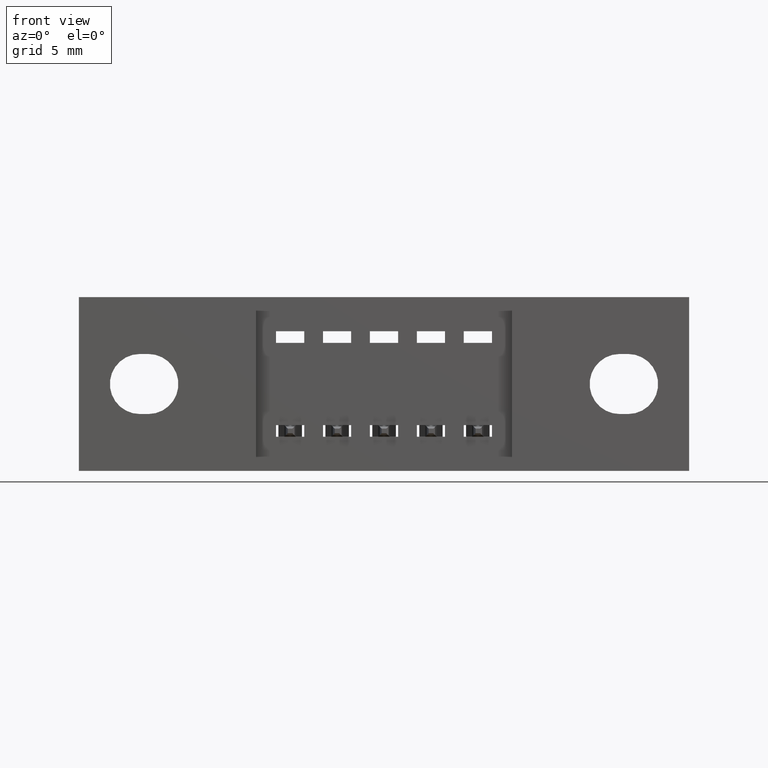
[diagram: clean part render]
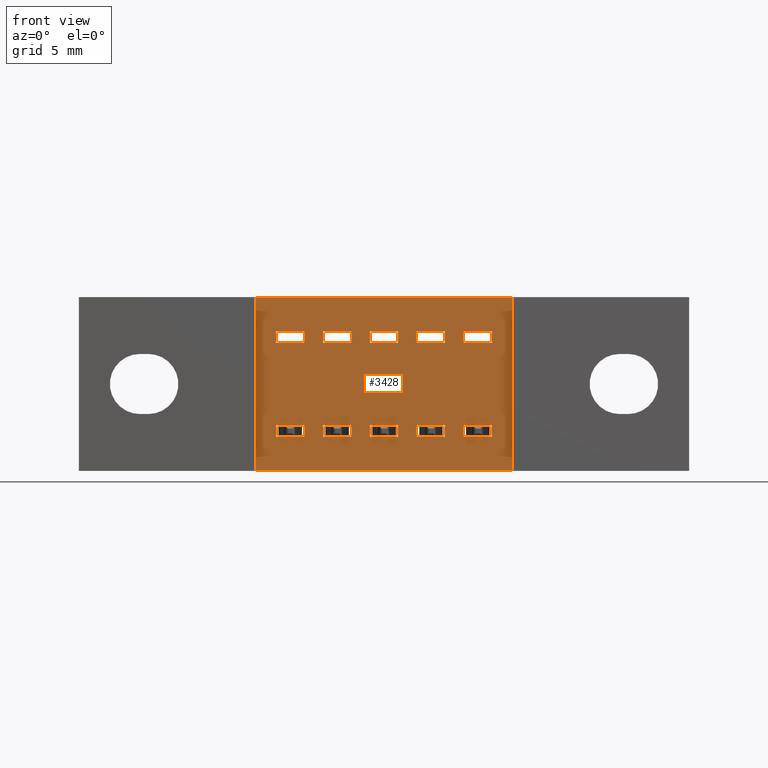
[diagram: same view with one face highlighted and labeled with its STEP entity id]
A machine part, front view. The second image highlights one B-rep face of the part: STEP entity #3428.
In plain terms, the highlighted planar face has unit normal (0, 1, 0).
Its self-contained STEP definition (entity closure, byte-faithful):
#25 = VECTOR ( 'NONE', #844, 39.37007874015748100 ) ;
#57 = VERTEX_POINT ( 'NONE', #4069 ) ;
#60 = DIRECTION ( 'NONE',  ( 0.0000000000000000000, 3.414809992080328000E-016, -1.000000000000000000 ) ) ;
#75 = EDGE_LOOP ( 'NONE', ( #1052, #6623, #1704, #816 ) ) ;
#116 = VECTOR ( 'NONE', #2858, 39.37007874015748100 ) ;
#124 = DIRECTION ( 'NONE',  ( 0.0000000000000000000, 3.414809992080328000E-016, -1.000000000000000000 ) ) ;
#134 = VECTOR ( 'NONE', #3311, 39.37007874015748100 ) ;
#174 = VERTEX_POINT ( 'NONE', #4760 ) ;
#248 = CARTESIAN_POINT ( 'NONE',  ( 0.6799999999999999400, 0.04000000000000000100, -0.2975000000000001000 ) ) ;
#309 = LINE ( 'NONE', #2794, #116 ) ;
#329 = LINE ( 'NONE', #4501, #2101 ) ;
#344 = CARTESIAN_POINT ( 'NONE',  ( 0.5200000000000000200, 0.04000000000000000800, -0.07249999999999999500 ) ) ;
#371 = EDGE_CURVE ( 'NONE', #3257, #3170, #7531, .T. ) ;
#403 = VERTEX_POINT ( 'NONE', #248 ) ;
#444 = VERTEX_POINT ( 'NONE', #6239 ) ;
#456 = ORIENTED_EDGE ( 'NONE', *, *, #6160, .T. ) ;
#493 = CARTESIAN_POINT ( 'NONE',  ( 0.7199999999999998600, 0.04000000000000000800, -0.07250000000000002300 ) ) ;
#508 = VECTOR ( 'NONE', #5824, 39.37007874015748100 ) ;
#510 = CARTESIAN_POINT ( 'NONE',  ( 0.4799999999999999800, 0.04000000000000000100, -0.2725000000000000200 ) ) ;
#523 = VECTOR ( 'NONE', #7432, 39.37007874015748100 ) ;
#544 = DIRECTION ( 'NONE',  ( 1.000000000000000000, -0.0000000000000000000, -0.0000000000000000000 ) ) ;
#549 = VERTEX_POINT ( 'NONE', #6992 ) ;
#588 = EDGE_LOOP ( 'NONE', ( #861, #5033, #2090, #2577 ) ) ;
#648 = CARTESIAN_POINT ( 'NONE',  ( 0.8199999999999998400, 0.04000000000000000100, -0.2725000000000000800 ) ) ;
#650 = ORIENTED_EDGE ( 'NONE', *, *, #4269, .T. ) ;
#668 = DIRECTION ( 'NONE',  ( 1.000000000000000000, -0.0000000000000000000, -0.0000000000000000000 ) ) ;
#676 = CARTESIAN_POINT ( 'NONE',  ( 0.9229999999999999300, 0.04000000000000000100, -0.3700000000000000000 ) ) ;
#693 = CARTESIAN_POINT ( 'NONE',  ( 0.4799999999999999800, 0.04000000000000000100, -0.2725000000000000200 ) ) ;
#697 = VECTOR ( 'NONE', #3693, 39.37007874015748100 ) ;
#707 = VERTEX_POINT ( 'NONE', #2707 ) ;
#714 = EDGE_CURVE ( 'NONE', #1273, #57, #1741, .T. ) ;
#745 = EDGE_CURVE ( 'NONE', #5163, #4393, #1357, .T. ) ;
#769 = CARTESIAN_POINT ( 'NONE',  ( 0.7199999999999998600, 0.04000000000000000100, -0.09750000000000003100 ) ) ;
#791 = LINE ( 'NONE', #4119, #6969 ) ;
#792 = CARTESIAN_POINT ( 'NONE',  ( 0.4200000000000000400, 0.04000000000000000100, -0.2725000000000000200 ) ) ;
#816 = ORIENTED_EDGE ( 'NONE', *, *, #1228, .F. ) ;
#844 = DIRECTION ( 'NONE',  ( 1.000000000000000000, -0.0000000000000000000, -0.0000000000000000000 ) ) ;
#861 = ORIENTED_EDGE ( 'NONE', *, *, #2764, .T. ) ;
#893 = CARTESIAN_POINT ( 'NONE',  ( 0.8199999999999998400, 0.04000000000000000800, -0.07250000000000003700 ) ) ;
#898 = VERTEX_POINT ( 'NONE', #2296 ) ;
#936 = CARTESIAN_POINT ( 'NONE',  ( 0.4200000000000000400, 0.04000000000000000100, -0.2725000000000000200 ) ) ;
#959 = EDGE_CURVE ( 'NONE', #4010, #6104, #4534, .T. ) ;
#977 = DIRECTION ( 'NONE',  ( 1.000000000000000000, -0.0000000000000000000, -0.0000000000000000000 ) ) ;
#983 = VECTOR ( 'NONE', #4217, 39.37007874015748100 ) ;
#1052 = ORIENTED_EDGE ( 'NONE', *, *, #6524, .F. ) ;
#1106 = VERTEX_POINT ( 'NONE', #5840 ) ;
#1125 = CARTESIAN_POINT ( 'NONE',  ( 0.6200000000000000000, 0.04000000000000000100, -0.2725000000000000800 ) ) ;
#1173 = VECTOR ( 'NONE', #7095, 39.37007874015748100 ) ;
#1195 = FACE_BOUND ( 'NONE', #75, .T. ) ;
#1196 = VECTOR ( 'NONE', #4358, 39.37007874015748100 ) ;
#1205 = LINE ( 'NONE', #1125, #4263 ) ;
#1228 = EDGE_CURVE ( 'NONE', #174, #4693, #4427, .T. ) ;
#1264 = CARTESIAN_POINT ( 'NONE',  ( 0.7199999999999998600, 0.04000000000000000100, -0.2725000000000000800 ) ) ;
#1269 = LINE ( 'NONE', #1264, #4338 ) ;
#1273 = VERTEX_POINT ( 'NONE', #7652 ) ;
#1301 = ORIENTED_EDGE ( 'NONE', *, *, #4323, .T. ) ;
#1330 = VECTOR ( 'NONE', #4502, 39.37007874015748100 ) ;
#1340 = LINE ( 'NONE', #4134, #4425 ) ;
#1357 = LINE ( 'NONE', #5047, #7705 ) ;
#1400 = ORIENTED_EDGE ( 'NONE', *, *, #4314, .F. ) ;
#1425 = LINE ( 'NONE', #6259, #3205 ) ;
#1448 = DIRECTION ( 'NONE',  ( 0.0000000000000000000, 3.414809992080328000E-016, -1.000000000000000000 ) ) ;
#1513 = EDGE_CURVE ( 'NONE', #2243, #1605, #2257, .T. ) ;
#1537 = DIRECTION ( 'NONE',  ( 1.000000000000000000, -0.0000000000000000000, -0.0000000000000000000 ) ) ;
#1542 = CARTESIAN_POINT ( 'NONE',  ( 0.7799999999999999200, 0.04000000000000000100, -0.2725000000000000800 ) ) ;
#1571 = CARTESIAN_POINT ( 'NONE',  ( 0.5800000000000000700, 0.04000000000000000100, -0.2975000000000000400 ) ) ;
#1588 = CARTESIAN_POINT ( 'NONE',  ( 0.3770000000000000600, 0.04000000000000000100, -0.3700000000000000000 ) ) ;
#1605 = VERTEX_POINT ( 'NONE', #4353 ) ;
#1620 = CARTESIAN_POINT ( 'NONE',  ( 0.5200000000000000200, 0.04000000000000000800, -0.2975000000000000400 ) ) ;
#1704 = ORIENTED_EDGE ( 'NONE', *, *, #2536, .T. ) ;
#1736 = EDGE_LOOP ( 'NONE', ( #6810, #7825, #6886, #6044 ) ) ;
#1741 = LINE ( 'NONE', #2721, #3141 ) ;
#1747 = LINE ( 'NONE', #7662, #134 ) ;
#1794 = ORIENTED_EDGE ( 'NONE', *, *, #745, .T. ) ;
#1822 = VECTOR ( 'NONE', #5116, 39.37007874015748100 ) ;
#1849 = EDGE_CURVE ( 'NONE', #3970, #7869, #3023, .T. ) ;
#1865 = CARTESIAN_POINT ( 'NONE',  ( 0.6200000000000000000, 0.04000000000000000100, -0.09750000000000001700 ) ) ;
#1892 = LINE ( 'NONE', #1620, #3317 ) ;
#1934 = ORIENTED_EDGE ( 'NONE', *, *, #2716, .F. ) ;
#1961 = EDGE_CURVE ( 'NONE', #7923, #3170, #4137, .T. ) ;
#1967 = CARTESIAN_POINT ( 'NONE',  ( 0.5800000000000000700, 0.04000000000000000100, -0.09750000000000000300 ) ) ;
#2050 = EDGE_CURVE ( 'NONE', #2689, #3620, #6281, .T. ) ;
#2052 = EDGE_LOOP ( 'NONE', ( #6495, #6341, #6436, #6233 ) ) ;
#2059 = EDGE_CURVE ( 'NONE', #549, #5204, #4607, .T. ) ;
#2061 = EDGE_LOOP ( 'NONE', ( #4257, #5574, #5628, #7523 ) ) ;
#2090 = ORIENTED_EDGE ( 'NONE', *, *, #6053, .T. ) ;
#2091 = LINE ( 'NONE', #1865, #523 ) ;
#2101 = VECTOR ( 'NONE', #5128, 39.37007874015748100 ) ;
#2157 = DIRECTION ( 'NONE',  ( -0.0000000000000000000, -3.414809992080328000E-016, -1.000000000000000000 ) ) ;
#2164 = EDGE_CURVE ( 'NONE', #3970, #4961, #5900, .T. ) ;
#2226 = VERTEX_POINT ( 'NONE', #7021 ) ;
#2243 = VERTEX_POINT ( 'NONE', #693 ) ;
#2257 = LINE ( 'NONE', #510, #4144 ) ;
#2260 = VERTEX_POINT ( 'NONE', #4318 ) ;
#2270 = LINE ( 'NONE', #4933, #697 ) ;
#2296 = CARTESIAN_POINT ( 'NONE',  ( 0.8799999999999998900, 0.04000000000000000100, -0.2975000000000001000 ) ) ;
#2307 = EDGE_CURVE ( 'NONE', #1273, #6412, #2814, .T. ) ;
#2388 = CARTESIAN_POINT ( 'NONE',  ( 0.5800000000000000700, 0.04000000000000000800, -0.07249999999999999500 ) ) ;
#2438 = DIRECTION ( 'NONE',  ( 1.000000000000000000, -0.0000000000000000000, -0.0000000000000000000 ) ) ;
#2501 = DIRECTION ( 'NONE',  ( 1.000000000000000000, 0.0000000000000000000, 0.0000000000000000000 ) ) ;
#2530 = VECTOR ( 'NONE', #5576, 39.37007874015748100 ) ;
#2536 = EDGE_CURVE ( 'NONE', #6057, #4693, #2969, .T. ) ;
#2538 = VECTOR ( 'NONE', #3738, 39.37007874015748100 ) ;
#2547 = FACE_BOUND ( 'NONE', #2575, .T. ) ;
#2552 = EDGE_CURVE ( 'NONE', #3194, #1106, #1205, .T. ) ;
#2575 = EDGE_LOOP ( 'NONE', ( #4765, #456, #1794, #3910 ) ) ;
#2577 = ORIENTED_EDGE ( 'NONE', *, *, #2640, .T. ) ;
#2582 = CARTESIAN_POINT ( 'NONE',  ( 0.6200000000000000000, 0.04000000000000000800, -0.07250000000000000900 ) ) ;
#2584 = ORIENTED_EDGE ( 'NONE', *, *, #3835, .F. ) ;
#2640 = EDGE_CURVE ( 'NONE', #2226, #4585, #5366, .T. ) ;
#2681 = VERTEX_POINT ( 'NONE', #893 ) ;
#2689 = VERTEX_POINT ( 'NONE', #5690 ) ;
#2707 = CARTESIAN_POINT ( 'NONE',  ( 0.4200000000000000400, 0.04000000000000000800, -0.07249999999999998100 ) ) ;
#2716 = EDGE_CURVE ( 'NONE', #4200, #403, #3062, .T. ) ;
#2721 = CARTESIAN_POINT ( 'NONE',  ( 0.5200000000000000200, 0.04000000000000000100, -0.2725000000000000200 ) ) ;
#2736 = VECTOR ( 'NONE', #3279, 39.37007874015748100 ) ;
#2748 = FACE_BOUND ( 'NONE', #5475, .T. ) ;
#2764 = EDGE_CURVE ( 'NONE', #4585, #2689, #6032, .T. ) ;
#2794 = CARTESIAN_POINT ( 'NONE',  ( 0.6799999999999999400, 0.04000000000000000100, -0.2725000000000000800 ) ) ;
#2810 = CARTESIAN_POINT ( 'NONE',  ( 0.7199999999999998600, 0.04000000000000000100, -0.2725000000000000800 ) ) ;
#2811 = EDGE_LOOP ( 'NONE', ( #4088, #7011, #6555, #5868 ) ) ;
#2814 = LINE ( 'NONE', #3298, #4706 ) ;
#2858 = DIRECTION ( 'NONE',  ( 0.0000000000000000000, 3.414809992080328000E-016, -1.000000000000000000 ) ) ;
#2891 = CARTESIAN_POINT ( 'NONE',  ( 0.7799999999999999200, 0.04000000000000000100, -0.09750000000000003100 ) ) ;
#2951 = FACE_BOUND ( 'NONE', #2811, .T. ) ;
#2969 = LINE ( 'NONE', #5434, #4459 ) ;
#2987 = EDGE_CURVE ( 'NONE', #4718, #6214, #7721, .T. ) ;
#2991 = ORIENTED_EDGE ( 'NONE', *, *, #6354, .F. ) ;
#3011 = CARTESIAN_POINT ( 'NONE',  ( 0.6200000000000000000, 0.04000000000000000800, -0.07250000000000000900 ) ) ;
#3023 = LINE ( 'NONE', #3237, #6384 ) ;
#3026 = LINE ( 'NONE', #3989, #4521 ) ;
#3045 = VECTOR ( 'NONE', #124, 39.37007874015748100 ) ;
#3060 = VERTEX_POINT ( 'NONE', #1542 ) ;
#3062 = LINE ( 'NONE', #3702, #6629 ) ;
#3084 = DIRECTION ( 'NONE',  ( 1.000000000000000000, -0.0000000000000000000, -0.0000000000000000000 ) ) ;
#3141 = VECTOR ( 'NONE', #3084, 39.37007874015748100 ) ;
#3151 = VECTOR ( 'NONE', #6639, 39.37007874015748100 ) ;
#3170 = VERTEX_POINT ( 'NONE', #2891 ) ;
#3194 = VERTEX_POINT ( 'NONE', #6866 ) ;
#3205 = VECTOR ( 'NONE', #4388, 39.37007874015748100 ) ;
#3237 = CARTESIAN_POINT ( 'NONE',  ( 0.8199999999999998400, 0.04000000000000000100, -0.2725000000000000800 ) ) ;
#3244 = CARTESIAN_POINT ( 'NONE',  ( 0.4799999999999999800, 0.04000000000000000100, -0.09749999999999998900 ) ) ;
#3245 = VERTEX_POINT ( 'NONE', #6687 ) ;
#3257 = VERTEX_POINT ( 'NONE', #7549 ) ;
#3279 = DIRECTION ( 'NONE',  ( -0.0000000000000000000, -3.414809992080328000E-016, -1.000000000000000000 ) ) ;
#3289 = DIRECTION ( 'NONE',  ( -0.0000000000000000000, -3.414809992080328000E-016, -1.000000000000000000 ) ) ;
#3290 = DIRECTION ( 'NONE',  ( 1.000000000000000000, -0.0000000000000000000, -0.0000000000000000000 ) ) ;
#3298 = CARTESIAN_POINT ( 'NONE',  ( 0.5200000000000000200, 0.04000000000000000100, -0.2725000000000000200 ) ) ;
#3311 = DIRECTION ( 'NONE',  ( 0.0000000000000000000, 3.414809992080328000E-016, -1.000000000000000000 ) ) ;
#3317 = VECTOR ( 'NONE', #5349, 39.37007874015748100 ) ;
#3345 = EDGE_CURVE ( 'NONE', #57, #5381, #329, .T. ) ;
#3370 = CARTESIAN_POINT ( 'NONE',  ( 0.8199999999999998400, 0.04000000000000000100, -0.2725000000000000800 ) ) ;
#3423 = VECTOR ( 'NONE', #668, 39.37007874015748100 ) ;
#3428 = ADVANCED_FACE ( 'NONE', ( #6120, #2951, #6517, #7710, #4441, #2748, #1195, #7530, #5931, #4248, #2547 ), #7015, .F. ) ;
#3429 = VECTOR ( 'NONE', #6432, 39.37007874015748100 ) ;
#3434 = LINE ( 'NONE', #769, #1822 ) ;
#3502 = ORIENTED_EDGE ( 'NONE', *, *, #2987, .T. ) ;
#3535 = VECTOR ( 'NONE', #7805, 39.37007874015748100 ) ;
#3620 = VERTEX_POINT ( 'NONE', #4476 ) ;
#3622 = EDGE_CURVE ( 'NONE', #6665, #3245, #1269, .T. ) ;
#3630 = LINE ( 'NONE', #5804, #3429 ) ;
#3681 = CARTESIAN_POINT ( 'NONE',  ( 0.8799999999999998900, 0.04000000000000000100, -0.2725000000000000800 ) ) ;
#3691 = CARTESIAN_POINT ( 'NONE',  ( 0.8799999999999998900, 0.04000000000000000100, -0.09750000000000003100 ) ) ;
#3693 = DIRECTION ( 'NONE',  ( 1.000000000000000000, -0.0000000000000000000, -0.0000000000000000000 ) ) ;
#3702 = CARTESIAN_POINT ( 'NONE',  ( 0.6200000000000000000, 0.04000000000000000800, -0.2975000000000001000 ) ) ;
#3711 = DIRECTION ( 'NONE',  ( 1.000000000000000000, -0.0000000000000000000, -0.0000000000000000000 ) ) ;
#3726 = EDGE_CURVE ( 'NONE', #6325, #5204, #3749, .T. ) ;
#3738 = DIRECTION ( 'NONE',  ( 1.000000000000000000, -0.0000000000000000000, -0.0000000000000000000 ) ) ;
#3749 = LINE ( 'NONE', #7505, #6871 ) ;
#3835 = EDGE_CURVE ( 'NONE', #4718, #2260, #6506, .T. ) ;
#3866 = VECTOR ( 'NONE', #2501, 39.37007874015748100 ) ;
#3910 = ORIENTED_EDGE ( 'NONE', *, *, #7492, .F. ) ;
#3940 = VECTOR ( 'NONE', #3290, 39.37007874015748100 ) ;
#3970 = VERTEX_POINT ( 'NONE', #3370 ) ;
#3973 = CARTESIAN_POINT ( 'NONE',  ( 0.4200000000000000400, 0.04000000000000000800, -0.07249999999999998100 ) ) ;
#3989 = CARTESIAN_POINT ( 'NONE',  ( 0.7199999999999998600, 0.04000000000000000100, -0.2725000000000000800 ) ) ;
#4010 = VERTEX_POINT ( 'NONE', #792 ) ;
#4069 = CARTESIAN_POINT ( 'NONE',  ( 0.5800000000000000700, 0.04000000000000000100, -0.2725000000000000200 ) ) ;
#4071 = LINE ( 'NONE', #5614, #5547 ) ;
#4088 = ORIENTED_EDGE ( 'NONE', *, *, #5704, .F. ) ;
#4119 = CARTESIAN_POINT ( 'NONE',  ( 0.8199999999999998400, 0.04000000000000000800, -0.07250000000000003700 ) ) ;
#4134 = CARTESIAN_POINT ( 'NONE',  ( 0.6200000000000000000, 0.04000000000000000100, -0.2725000000000000800 ) ) ;
#4137 = LINE ( 'NONE', #7896, #508 ) ;
#4144 = VECTOR ( 'NONE', #1448, 39.37007874015748100 ) ;
#4170 = EDGE_CURVE ( 'NONE', #6113, #6325, #5627, .T. ) ;
#4200 = VERTEX_POINT ( 'NONE', #6569 ) ;
#4217 = DIRECTION ( 'NONE',  ( -0.0000000000000000000, -3.414809992080328000E-016, -1.000000000000000000 ) ) ;
#4240 = CARTESIAN_POINT ( 'NONE',  ( 0.8199999999999998400, 0.04000000000000000100, -0.09750000000000003100 ) ) ;
#4248 = FACE_BOUND ( 'NONE', #1736, .T. ) ;
#4257 = ORIENTED_EDGE ( 'NONE', *, *, #5215, .F. ) ;
#4263 = VECTOR ( 'NONE', #5186, 39.37007874015748100 ) ;
#4269 = EDGE_CURVE ( 'NONE', #1106, #403, #309, .T. ) ;
#4314 = EDGE_CURVE ( 'NONE', #3194, #4200, #1340, .T. ) ;
#4318 = CARTESIAN_POINT ( 'NONE',  ( 0.6200000000000000000, 0.04000000000000000100, -0.09750000000000001700 ) ) ;
#4323 = EDGE_CURVE ( 'NONE', #6214, #4482, #6101, .T. ) ;
#4326 = EDGE_LOOP ( 'NONE', ( #2584, #3502, #1301, #5960 ) ) ;
#4338 = VECTOR ( 'NONE', #6145, 39.37007874015748100 ) ;
#4353 = CARTESIAN_POINT ( 'NONE',  ( 0.4799999999999999800, 0.04000000000000000100, -0.2975000000000000400 ) ) ;
#4357 = VECTOR ( 'NONE', #6554, 39.37007874015748100 ) ;
#4358 = DIRECTION ( 'NONE',  ( 1.000000000000000000, -0.0000000000000000000, -0.0000000000000000000 ) ) ;
#4363 = EDGE_CURVE ( 'NONE', #6162, #7923, #7514, .T. ) ;
#4388 = DIRECTION ( 'NONE',  ( 1.000000000000000000, -0.0000000000000000000, -0.0000000000000000000 ) ) ;
#4389 = DIRECTION ( 'NONE',  ( 0.0000000000000000000, 3.414809992080328000E-016, -1.000000000000000000 ) ) ;
#4393 = VERTEX_POINT ( 'NONE', #3691 ) ;
#4425 = VECTOR ( 'NONE', #60, 39.37007874015748100 ) ;
#4427 = LINE ( 'NONE', #5140, #5914 ) ;
#4434 = LINE ( 'NONE', #4240, #983 ) ;
#4439 = LINE ( 'NONE', #1588, #6119 ) ;
#4441 = FACE_OUTER_BOUND ( 'NONE', #588, .T. ) ;
#4459 = VECTOR ( 'NONE', #3289, 39.37007874015748100 ) ;
#4476 = CARTESIAN_POINT ( 'NONE',  ( 0.3770000000000000600, 0.04000000000000000100, 0.0000000000000000000 ) ) ;
#4482 = VERTEX_POINT ( 'NONE', #7553 ) ;
#4501 = CARTESIAN_POINT ( 'NONE',  ( 0.5800000000000000700, 0.04000000000000000100, -0.2725000000000000200 ) ) ;
#4502 = DIRECTION ( 'NONE',  ( 1.000000000000000000, -0.0000000000000000000, -0.0000000000000000000 ) ) ;
#4521 = VECTOR ( 'NONE', #1537, 39.37007874015748100 ) ;
#4528 = CARTESIAN_POINT ( 'NONE',  ( 0.4200000000000000400, 0.04000000000000000100, -0.2725000000000000200 ) ) ;
#4534 = LINE ( 'NONE', #936, #3045 ) ;
#4573 = CARTESIAN_POINT ( 'NONE',  ( 0.4200000000000000400, 0.04000000000000000100, -0.09749999999999998900 ) ) ;
#4585 = VERTEX_POINT ( 'NONE', #5410 ) ;
#4607 = LINE ( 'NONE', #5765, #1330 ) ;
#4633 = VECTOR ( 'NONE', #7618, 39.37007874015748100 ) ;
#4637 = EDGE_CURVE ( 'NONE', #2681, #6999, #4434, .T. ) ;
#4677 = EDGE_CURVE ( 'NONE', #707, #6057, #7345, .T. ) ;
#4687 = CARTESIAN_POINT ( 'NONE',  ( 0.8199999999999998400, 0.04000000000000000800, -0.2975000000000001000 ) ) ;
#4693 = VERTEX_POINT ( 'NONE', #3244 ) ;
#4706 = VECTOR ( 'NONE', #7120, 39.37007874015748100 ) ;
#4718 = VERTEX_POINT ( 'NONE', #2582 ) ;
#4720 = LINE ( 'NONE', #4528, #25 ) ;
#4760 = CARTESIAN_POINT ( 'NONE',  ( 0.4200000000000000400, 0.04000000000000000100, -0.09749999999999998900 ) ) ;
#4765 = ORIENTED_EDGE ( 'NONE', *, *, #4637, .F. ) ;
#4809 = CARTESIAN_POINT ( 'NONE',  ( 0.3770000000000000600, 0.04000000000000000100, -0.3700000000000000000 ) ) ;
#4811 = EDGE_LOOP ( 'NONE', ( #1934, #1400, #5293, #650 ) ) ;
#4812 = VECTOR ( 'NONE', #7273, 39.37007874015748100 ) ;
#4867 = CARTESIAN_POINT ( 'NONE',  ( 0.7199999999999998600, 0.04000000000000000100, -0.09750000000000003100 ) ) ;
#4933 = CARTESIAN_POINT ( 'NONE',  ( 0.4200000000000000400, 0.04000000000000000800, -0.2975000000000000400 ) ) ;
#4961 = VERTEX_POINT ( 'NONE', #3681 ) ;
#5033 = ORIENTED_EDGE ( 'NONE', *, *, #2050, .T. ) ;
#5047 = CARTESIAN_POINT ( 'NONE',  ( 0.8799999999999998900, 0.04000000000000000100, -0.09750000000000003100 ) ) ;
#5112 = LINE ( 'NONE', #5562, #3423 ) ;
#5116 = DIRECTION ( 'NONE',  ( -0.0000000000000000000, -3.414809992080328000E-016, -1.000000000000000000 ) ) ;
#5128 = DIRECTION ( 'NONE',  ( 0.0000000000000000000, 3.414809992080328000E-016, -1.000000000000000000 ) ) ;
#5134 = DIRECTION ( 'NONE',  ( -0.0000000000000000000, -3.414809992080328000E-016, -1.000000000000000000 ) ) ;
#5140 = CARTESIAN_POINT ( 'NONE',  ( 0.4200000000000000400, 0.04000000000000000100, -0.09749999999999998900 ) ) ;
#5163 = VERTEX_POINT ( 'NONE', #6896 ) ;
#5186 = DIRECTION ( 'NONE',  ( 1.000000000000000000, -0.0000000000000000000, -0.0000000000000000000 ) ) ;
#5204 = VERTEX_POINT ( 'NONE', #1967 ) ;
#5215 = EDGE_CURVE ( 'NONE', #6162, #3257, #3434, .T. ) ;
#5271 = EDGE_CURVE ( 'NONE', #4010, #2243, #4720, .T. ) ;
#5293 = ORIENTED_EDGE ( 'NONE', *, *, #2552, .T. ) ;
#5310 = DIRECTION ( 'NONE',  ( -0.0000000000000000000, -0.0000000000000000000, -1.000000000000000000 ) ) ;
#5340 = CARTESIAN_POINT ( 'NONE',  ( 0.4200000000000000400, 0.04000000000000000800, -0.2975000000000000400 ) ) ;
#5349 = DIRECTION ( 'NONE',  ( 1.000000000000000000, -0.0000000000000000000, -0.0000000000000000000 ) ) ;
#5366 = LINE ( 'NONE', #4809, #3866 ) ;
#5381 = VERTEX_POINT ( 'NONE', #1571 ) ;
#5391 = CARTESIAN_POINT ( 'NONE',  ( 0.7799999999999999200, 0.04000000000000000800, -0.07250000000000002300 ) ) ;
#5410 = CARTESIAN_POINT ( 'NONE',  ( 0.9229999999999999300, 0.04000000000000000100, -0.3700000000000000000 ) ) ;
#5434 = CARTESIAN_POINT ( 'NONE',  ( 0.4799999999999999800, 0.04000000000000000100, -0.09749999999999998900 ) ) ;
#5436 = EDGE_CURVE ( 'NONE', #6412, #5381, #1892, .T. ) ;
#5472 = CARTESIAN_POINT ( 'NONE',  ( 0.6799999999999999400, 0.04000000000000000800, -0.07250000000000000900 ) ) ;
#5475 = EDGE_LOOP ( 'NONE', ( #2991, #6735, #6636, #6242 ) ) ;
#5495 = CARTESIAN_POINT ( 'NONE',  ( 0.7199999999999998600, 0.04000000000000000800, -0.07250000000000002300 ) ) ;
#5547 = VECTOR ( 'NONE', #2438, 39.37007874015748100 ) ;
#5562 = CARTESIAN_POINT ( 'NONE',  ( 0.8199999999999998400, 0.04000000000000000100, -0.09750000000000003100 ) ) ;
#5574 = ORIENTED_EDGE ( 'NONE', *, *, #4363, .T. ) ;
#5576 = DIRECTION ( 'NONE',  ( 1.000000000000000000, -0.0000000000000000000, -0.0000000000000000000 ) ) ;
#5614 = CARTESIAN_POINT ( 'NONE',  ( 0.7199999999999998600, 0.04000000000000000800, -0.2975000000000001000 ) ) ;
#5627 = LINE ( 'NONE', #344, #3940 ) ;
#5628 = ORIENTED_EDGE ( 'NONE', *, *, #1961, .T. ) ;
#5690 = CARTESIAN_POINT ( 'NONE',  ( 0.9229999999999999300, 0.04000000000000000100, -1.895600338963814900E-033 ) ) ;
#5704 = EDGE_CURVE ( 'NONE', #3245, #444, #4071, .T. ) ;
#5765 = CARTESIAN_POINT ( 'NONE',  ( 0.5200000000000000200, 0.04000000000000000100, -0.09750000000000000300 ) ) ;
#5804 = CARTESIAN_POINT ( 'NONE',  ( 0.5200000000000000200, 0.04000000000000000100, -0.09750000000000000300 ) ) ;
#5824 = DIRECTION ( 'NONE',  ( -0.0000000000000000000, -3.414809992080328000E-016, -1.000000000000000000 ) ) ;
#5840 = CARTESIAN_POINT ( 'NONE',  ( 0.6799999999999999400, 0.04000000000000000100, -0.2725000000000000800 ) ) ;
#5868 = ORIENTED_EDGE ( 'NONE', *, *, #5995, .T. ) ;
#5900 = LINE ( 'NONE', #648, #7141 ) ;
#5914 = VECTOR ( 'NONE', #977, 39.37007874015748100 ) ;
#5931 = FACE_BOUND ( 'NONE', #4326, .T. ) ;
#5960 = ORIENTED_EDGE ( 'NONE', *, *, #6378, .F. ) ;
#5995 = EDGE_CURVE ( 'NONE', #3060, #444, #1747, .T. ) ;
#6032 = LINE ( 'NONE', #676, #4357 ) ;
#6044 = ORIENTED_EDGE ( 'NONE', *, *, #7280, .T. ) ;
#6053 = EDGE_CURVE ( 'NONE', #3620, #2226, #4439, .T. ) ;
#6057 = VERTEX_POINT ( 'NONE', #6564 ) ;
#6101 = LINE ( 'NONE', #6562, #1173 ) ;
#6104 = VERTEX_POINT ( 'NONE', #5340 ) ;
#6113 = VERTEX_POINT ( 'NONE', #6611 ) ;
#6116 = ORIENTED_EDGE ( 'NONE', *, *, #5436, .F. ) ;
#6119 = VECTOR ( 'NONE', #5310, 39.37007874015748100 ) ;
#6120 = FACE_BOUND ( 'NONE', #2061, .T. ) ;
#6130 = ORIENTED_EDGE ( 'NONE', *, *, #2307, .F. ) ;
#6145 = DIRECTION ( 'NONE',  ( 0.0000000000000000000, 3.414809992080328000E-016, -1.000000000000000000 ) ) ;
#6160 = EDGE_CURVE ( 'NONE', #2681, #5163, #791, .T. ) ;
#6162 = VERTEX_POINT ( 'NONE', #493 ) ;
#6214 = VERTEX_POINT ( 'NONE', #5472 ) ;
#6233 = ORIENTED_EDGE ( 'NONE', *, *, #2059, .F. ) ;
#6239 = CARTESIAN_POINT ( 'NONE',  ( 0.7799999999999999200, 0.04000000000000000100, -0.2975000000000001000 ) ) ;
#6242 = ORIENTED_EDGE ( 'NONE', *, *, #1513, .T. ) ;
#6259 = CARTESIAN_POINT ( 'NONE',  ( 0.8199999999999998400, 0.04000000000000000800, -0.2975000000000001000 ) ) ;
#6281 = LINE ( 'NONE', #6365, #4812 ) ;
#6302 = LINE ( 'NONE', #4573, #2736 ) ;
#6325 = VERTEX_POINT ( 'NONE', #2388 ) ;
#6341 = ORIENTED_EDGE ( 'NONE', *, *, #4170, .T. ) ;
#6346 = CARTESIAN_POINT ( 'NONE',  ( 0.8199999999999998400, 0.04000000000000000100, -0.09750000000000003100 ) ) ;
#6354 = EDGE_CURVE ( 'NONE', #6104, #1605, #2270, .T. ) ;
#6365 = CARTESIAN_POINT ( 'NONE',  ( 0.3770000000000000600, 0.04000000000000000100, 0.0000000000000000000 ) ) ;
#6378 = EDGE_CURVE ( 'NONE', #2260, #4482, #2091, .T. ) ;
#6384 = VECTOR ( 'NONE', #4389, 39.37007874015748100 ) ;
#6412 = VERTEX_POINT ( 'NONE', #7455 ) ;
#6432 = DIRECTION ( 'NONE',  ( -0.0000000000000000000, -3.414809992080328000E-016, -1.000000000000000000 ) ) ;
#6436 = ORIENTED_EDGE ( 'NONE', *, *, #3726, .T. ) ;
#6495 = ORIENTED_EDGE ( 'NONE', *, *, #7079, .F. ) ;
#6506 = LINE ( 'NONE', #6844, #4633 ) ;
#6517 = FACE_BOUND ( 'NONE', #2052, .T. ) ;
#6524 = EDGE_CURVE ( 'NONE', #707, #174, #6302, .T. ) ;
#6554 = DIRECTION ( 'NONE',  ( 0.0000000000000000000, 0.0000000000000000000, 1.000000000000000000 ) ) ;
#6555 = ORIENTED_EDGE ( 'NONE', *, *, #7138, .T. ) ;
#6562 = CARTESIAN_POINT ( 'NONE',  ( 0.6799999999999999400, 0.04000000000000000100, -0.09750000000000001700 ) ) ;
#6564 = CARTESIAN_POINT ( 'NONE',  ( 0.4799999999999999800, 0.04000000000000000800, -0.07249999999999998100 ) ) ;
#6569 = CARTESIAN_POINT ( 'NONE',  ( 0.6200000000000000000, 0.04000000000000000800, -0.2975000000000001000 ) ) ;
#6611 = CARTESIAN_POINT ( 'NONE',  ( 0.5200000000000000200, 0.04000000000000000800, -0.07249999999999999500 ) ) ;
#6623 = ORIENTED_EDGE ( 'NONE', *, *, #4677, .T. ) ;
#6625 = CARTESIAN_POINT ( 'NONE',  ( 0.8799999999999998900, 0.04000000000000000100, -0.2725000000000000800 ) ) ;
#6629 = VECTOR ( 'NONE', #3711, 39.37007874015748100 ) ;
#6636 = ORIENTED_EDGE ( 'NONE', *, *, #5271, .T. ) ;
#6637 = DIRECTION ( 'NONE',  ( 1.000000000000000000, -0.0000000000000000000, -0.0000000000000000000 ) ) ;
#6639 = DIRECTION ( 'NONE',  ( 1.000000000000000000, -0.0000000000000000000, -0.0000000000000000000 ) ) ;
#6641 = EDGE_LOOP ( 'NONE', ( #6116, #6130, #6690, #7799 ) ) ;
#6665 = VERTEX_POINT ( 'NONE', #2810 ) ;
#6687 = CARTESIAN_POINT ( 'NONE',  ( 0.7199999999999998600, 0.04000000000000000800, -0.2975000000000001000 ) ) ;
#6690 = ORIENTED_EDGE ( 'NONE', *, *, #714, .T. ) ;
#6735 = ORIENTED_EDGE ( 'NONE', *, *, #959, .F. ) ;
#6810 = ORIENTED_EDGE ( 'NONE', *, *, #7547, .F. ) ;
#6844 = CARTESIAN_POINT ( 'NONE',  ( 0.6200000000000000000, 0.04000000000000000100, -0.09750000000000001700 ) ) ;
#6866 = CARTESIAN_POINT ( 'NONE',  ( 0.6200000000000000000, 0.04000000000000000100, -0.2725000000000000800 ) ) ;
#6871 = VECTOR ( 'NONE', #2157, 39.37007874015748100 ) ;
#6886 = ORIENTED_EDGE ( 'NONE', *, *, #2164, .T. ) ;
#6896 = CARTESIAN_POINT ( 'NONE',  ( 0.8799999999999998900, 0.04000000000000000800, -0.07250000000000003700 ) ) ;
#6969 = VECTOR ( 'NONE', #6637, 39.37007874015748100 ) ;
#6992 = CARTESIAN_POINT ( 'NONE',  ( 0.5200000000000000200, 0.04000000000000000100, -0.09750000000000000300 ) ) ;
#6999 = VERTEX_POINT ( 'NONE', #6346 ) ;
#7011 = ORIENTED_EDGE ( 'NONE', *, *, #3622, .F. ) ;
#7015 = PLANE ( 'NONE',  #7645 ) ;
#7021 = CARTESIAN_POINT ( 'NONE',  ( 0.3770000000000000600, 0.04000000000000000100, -0.3700000000000000000 ) ) ;
#7022 = DIRECTION ( 'NONE',  ( 0.0000000000000000000, -0.0000000000000000000, 1.000000000000000000 ) ) ;
#7045 = LINE ( 'NONE', #6625, #3535 ) ;
#7079 = EDGE_CURVE ( 'NONE', #6113, #549, #3630, .T. ) ;
#7095 = DIRECTION ( 'NONE',  ( -0.0000000000000000000, -3.414809992080328000E-016, -1.000000000000000000 ) ) ;
#7098 = DIRECTION ( 'NONE',  ( -0.0000000000000000000, 1.000000000000000000, 0.0000000000000000000 ) ) ;
#7120 = DIRECTION ( 'NONE',  ( 0.0000000000000000000, 3.414809992080328000E-016, -1.000000000000000000 ) ) ;
#7128 = CARTESIAN_POINT ( 'NONE',  ( 0.9229999999999998200, 0.04000000000000000100, -1.895600338963814500E-033 ) ) ;
#7138 = EDGE_CURVE ( 'NONE', #6665, #3060, #3026, .T. ) ;
#7141 = VECTOR ( 'NONE', #544, 39.37007874015748100 ) ;
#7273 = DIRECTION ( 'NONE',  ( -1.000000000000000000, -0.0000000000000000000, 3.471795492607720400E-033 ) ) ;
#7280 = EDGE_CURVE ( 'NONE', #4961, #898, #7045, .T. ) ;
#7345 = LINE ( 'NONE', #3973, #2538 ) ;
#7432 = DIRECTION ( 'NONE',  ( 1.000000000000000000, -0.0000000000000000000, -0.0000000000000000000 ) ) ;
#7455 = CARTESIAN_POINT ( 'NONE',  ( 0.5200000000000000200, 0.04000000000000000800, -0.2975000000000000400 ) ) ;
#7492 = EDGE_CURVE ( 'NONE', #6999, #4393, #5112, .T. ) ;
#7505 = CARTESIAN_POINT ( 'NONE',  ( 0.5800000000000000700, 0.04000000000000000100, -0.09750000000000000300 ) ) ;
#7514 = LINE ( 'NONE', #5495, #2530 ) ;
#7523 = ORIENTED_EDGE ( 'NONE', *, *, #371, .F. ) ;
#7530 = FACE_BOUND ( 'NONE', #4811, .T. ) ;
#7531 = LINE ( 'NONE', #4867, #1196 ) ;
#7547 = EDGE_CURVE ( 'NONE', #7869, #898, #1425, .T. ) ;
#7549 = CARTESIAN_POINT ( 'NONE',  ( 0.7199999999999998600, 0.04000000000000000100, -0.09750000000000003100 ) ) ;
#7553 = CARTESIAN_POINT ( 'NONE',  ( 0.6799999999999999400, 0.04000000000000000100, -0.09750000000000001700 ) ) ;
#7618 = DIRECTION ( 'NONE',  ( -0.0000000000000000000, -3.414809992080328000E-016, -1.000000000000000000 ) ) ;
#7645 = AXIS2_PLACEMENT_3D ( 'NONE', #7128, #7098, #7022 ) ;
#7652 = CARTESIAN_POINT ( 'NONE',  ( 0.5200000000000000200, 0.04000000000000000100, -0.2725000000000000200 ) ) ;
#7662 = CARTESIAN_POINT ( 'NONE',  ( 0.7799999999999999200, 0.04000000000000000100, -0.2725000000000000800 ) ) ;
#7705 = VECTOR ( 'NONE', #5134, 39.37007874015748100 ) ;
#7710 = FACE_BOUND ( 'NONE', #6641, .T. ) ;
#7721 = LINE ( 'NONE', #3011, #3151 ) ;
#7799 = ORIENTED_EDGE ( 'NONE', *, *, #3345, .T. ) ;
#7805 = DIRECTION ( 'NONE',  ( 0.0000000000000000000, 3.414809992080328000E-016, -1.000000000000000000 ) ) ;
#7825 = ORIENTED_EDGE ( 'NONE', *, *, #1849, .F. ) ;
#7869 = VERTEX_POINT ( 'NONE', #4687 ) ;
#7896 = CARTESIAN_POINT ( 'NONE',  ( 0.7799999999999999200, 0.04000000000000000100, -0.09750000000000003100 ) ) ;
#7923 = VERTEX_POINT ( 'NONE', #5391 ) ;